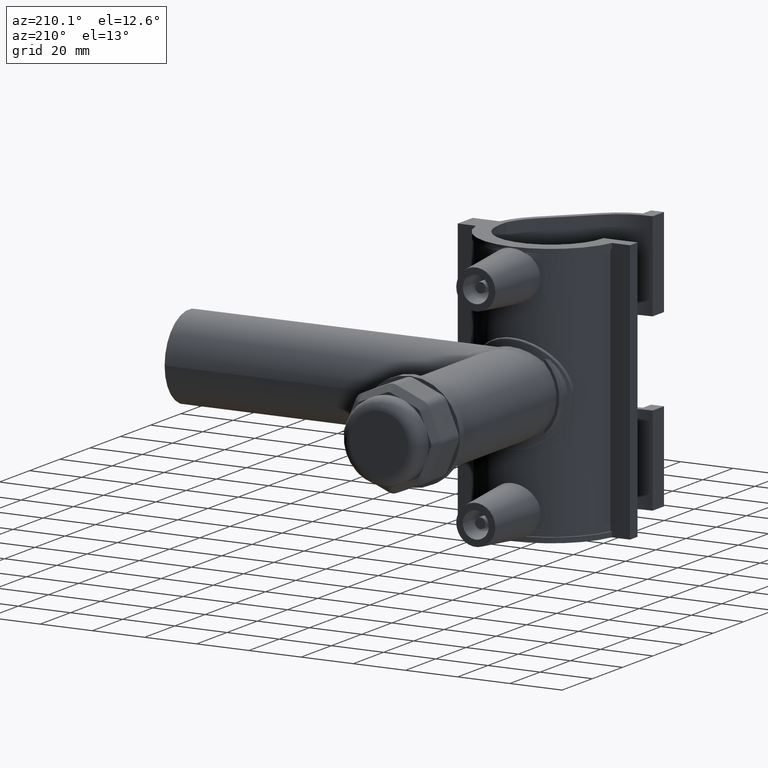
[diagram: clean part render]
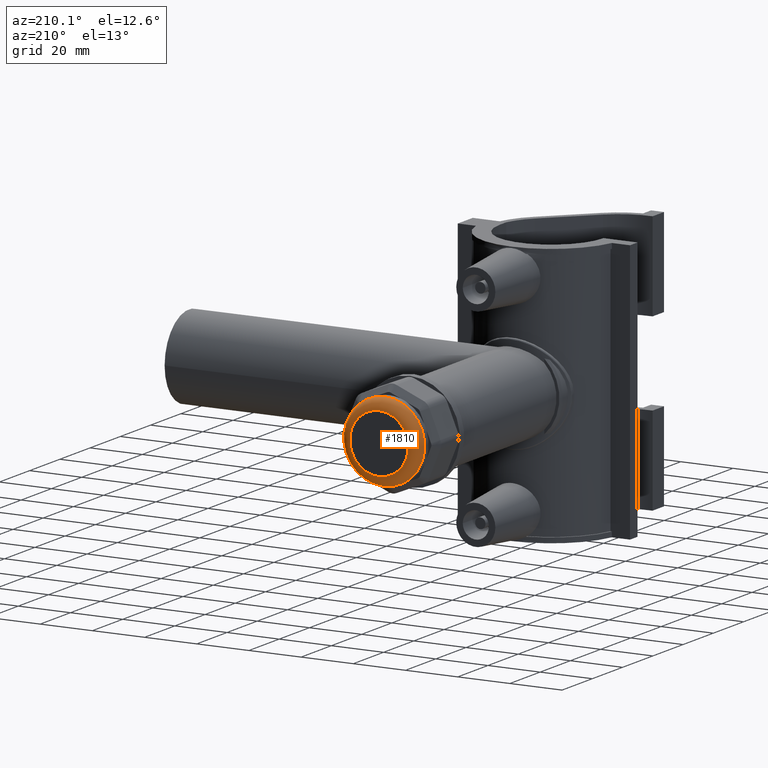
[diagram: same view with one face highlighted and labeled with its STEP entity id]
A machine part, auxiliary view. The second image highlights one B-rep face of the part: STEP entity #1810.
In plain terms, the highlighted toroidal blend (fillet) surface has major radius 11.2 mm and minor (blend) radius 4 mm.
Its self-contained STEP definition (entity closure, byte-faithful):
#17=TOROIDAL_SURFACE('',#1979,11.2,4.);
#58=FACE_BOUND('',#375,.T.);
#128=CIRCLE('',#1961,11.2);
#136=CIRCLE('',#1978,15.2);
#247=FACE_OUTER_BOUND('',#374,.T.);
#374=EDGE_LOOP('',(#1391));
#375=EDGE_LOOP('',(#1392));
#828=VERTEX_POINT('',#3293);
#843=VERTEX_POINT('',#3325);
#1031=EDGE_CURVE('',#828,#828,#128,.T.);
#1047=EDGE_CURVE('',#843,#843,#136,.T.);
#1391=ORIENTED_EDGE('',*,*,#1047,.T.);
#1392=ORIENTED_EDGE('',*,*,#1031,.T.);
#1810=ADVANCED_FACE('',(#247,#58),#17,.T.);
#1961=AXIS2_PLACEMENT_3D('',#3294,#2297,#2298);
#1978=AXIS2_PLACEMENT_3D('',#3326,#2331,#2332);
#1979=AXIS2_PLACEMENT_3D('',#3327,#2333,#2334);
#2297=DIRECTION('center_axis',(0.,-1.,-3.06161699786838E-16));
#2298=DIRECTION('ref_axis',(6.12323399573677E-17,3.06161699786838E-16,-1.));
#2331=DIRECTION('center_axis',(0.,1.,3.06161699786838E-16));
#2332=DIRECTION('ref_axis',(6.12323399573677E-17,2.92163953848725E-16,-1.));
#2333=DIRECTION('center_axis',(0.,1.,3.06161699786838E-16));
#2334=DIRECTION('ref_axis',(0.,0.,1.));
#3293=CARTESIAN_POINT('',(-2.05740662256755E-15,114.,11.2));
#3294=CARTESIAN_POINT('Origin',(0.,114.,2.87791997799628E-14));
#3325=CARTESIAN_POINT('',(9.30731567351988E-16,110.,15.2));
#3326=CARTESIAN_POINT('Origin',(0.,110.,2.75545529808154E-14));
#3327=CARTESIAN_POINT('Origin',(0.,110.,2.75545529808154E-14));